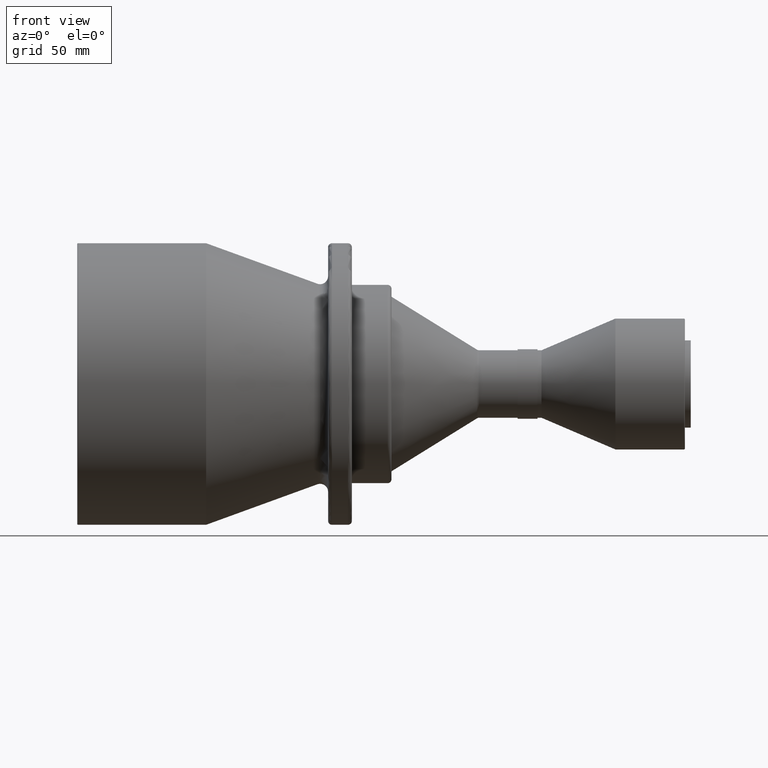
[diagram: clean part render]
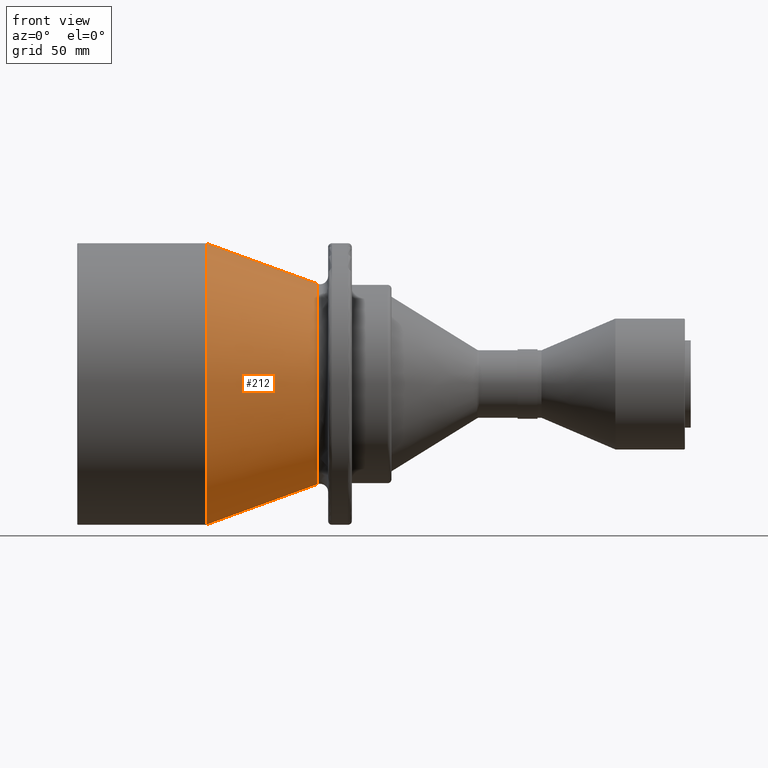
[diagram: same view with one face highlighted and labeled with its STEP entity id]
A machine part, front view. The second image highlights one B-rep face of the part: STEP entity #212.
In plain terms, the highlighted conical surface has half-angle 20 deg.
Its self-contained STEP definition (entity closure, byte-faithful):
#72 = AXIS2_PLACEMENT_3D ( 'NONE', #1640, #628, #1070 ) ;
#75 = ORIENTED_EDGE ( 'NONE', *, *, #186, .F. ) ;
#78 = VECTOR ( 'NONE', #995, 999.9999999999998900 ) ;
#108 = CARTESIAN_POINT ( 'NONE',  ( 121.1319194266972900, 6.192996262290270000E-015, -50.56965213645335000 ) ) ;
#186 = EDGE_CURVE ( 'NONE', #642, #225, #1757, .T. ) ;
#212 = ADVANCED_FACE ( 'NONE', ( #328 ), #1601, .T. ) ;
#225 = VERTEX_POINT ( 'NONE', #1153 ) ;
#328 = FACE_OUTER_BOUND ( 'NONE', #955, .T. ) ;
#413 = DIRECTION ( 'NONE',  ( -0.9396926207859082100, 4.188538737677001600E-017, -0.3420201433256695500 ) ) ;
#539 = DIRECTION ( 'NONE',  ( 0.0000000000000000000, 0.0000000000000000000, 1.000000000000000000 ) ) ;
#556 = EDGE_CURVE ( 'NONE', #642, #1379, #1287, .T. ) ;
#591 = ORIENTED_EDGE ( 'NONE', *, *, #729, .F. ) ;
#628 = DIRECTION ( 'NONE',  ( -1.000000000000000000, -0.0000000000000000000, -0.0000000000000000000 ) ) ;
#642 = VERTEX_POINT ( 'NONE', #1663 ) ;
#729 = EDGE_CURVE ( 'NONE', #225, #1664, #1624, .T. ) ;
#741 = VECTOR ( 'NONE', #413, 999.9999999999998900 ) ;
#806 = EDGE_CURVE ( 'NONE', #1379, #1664, #1651, .T. ) ;
#828 = DIRECTION ( 'NONE',  ( -1.000000000000000000, -0.0000000000000000000, -0.0000000000000000000 ) ) ;
#833 = AXIS2_PLACEMENT_3D ( 'NONE', #980, #1556, #1689 ) ;
#941 = ORIENTED_EDGE ( 'NONE', *, *, #556, .T. ) ;
#955 = EDGE_LOOP ( 'NONE', ( #75, #941, #1766, #591 ) ) ;
#969 = AXIS2_PLACEMENT_3D ( 'NONE', #1128, #828, #539 ) ;
#980 = CARTESIAN_POINT ( 'NONE',  ( 121.1319194266972900, 0.0000000000000000000, 0.0000000000000000000 ) ) ;
#995 = DIRECTION ( 'NONE',  ( -0.9396926207859082100, 0.0000000000000000000, 0.3420201433256695500 ) ) ;
#1070 = DIRECTION ( 'NONE',  ( 0.0000000000000000000, 0.0000000000000000000, 1.000000000000000000 ) ) ;
#1072 = CARTESIAN_POINT ( 'NONE',  ( 65.00000000000000000, 0.0000000000000000000, 71.00000000000001400 ) ) ;
#1128 = CARTESIAN_POINT ( 'NONE',  ( 65.00000000000000000, 0.0000000000000000000, 0.0000000000000000000 ) ) ;
#1153 = CARTESIAN_POINT ( 'NONE',  ( 65.00000000000000000, 8.694992273946208100E-015, -71.00000000000001400 ) ) ;
#1234 = CARTESIAN_POINT ( 'NONE',  ( 121.1319194266972900, 0.0000000000000000000, 50.56965213645334200 ) ) ;
#1287 = CIRCLE ( 'NONE', #72, 50.56965213645335000 ) ;
#1379 = VERTEX_POINT ( 'NONE', #1234 ) ;
#1556 = DIRECTION ( 'NONE',  ( -1.000000000000000000, -0.0000000000000000000, -0.0000000000000000000 ) ) ;
#1564 = CARTESIAN_POINT ( 'NONE',  ( 121.1319194266972900, 0.0000000000000000000, 50.56965213645335000 ) ) ;
#1601 = CONICAL_SURFACE ( 'NONE', #833, 50.56965213645335000, 0.3490658503988667300 ) ;
#1624 = CIRCLE ( 'NONE', #969, 71.00000000000001400 ) ;
#1640 = CARTESIAN_POINT ( 'NONE',  ( 121.1319194266972900, 0.0000000000000000000, 0.0000000000000000000 ) ) ;
#1651 = LINE ( 'NONE', #1564, #78 ) ;
#1663 = CARTESIAN_POINT ( 'NONE',  ( 121.1319194266972900, 6.192996262290269200E-015, -50.56965213645334200 ) ) ;
#1664 = VERTEX_POINT ( 'NONE', #1072 ) ;
#1689 = DIRECTION ( 'NONE',  ( 0.0000000000000000000, 0.0000000000000000000, 1.000000000000000000 ) ) ;
#1757 = LINE ( 'NONE', #108, #741 ) ;
#1766 = ORIENTED_EDGE ( 'NONE', *, *, #806, .T. ) ;